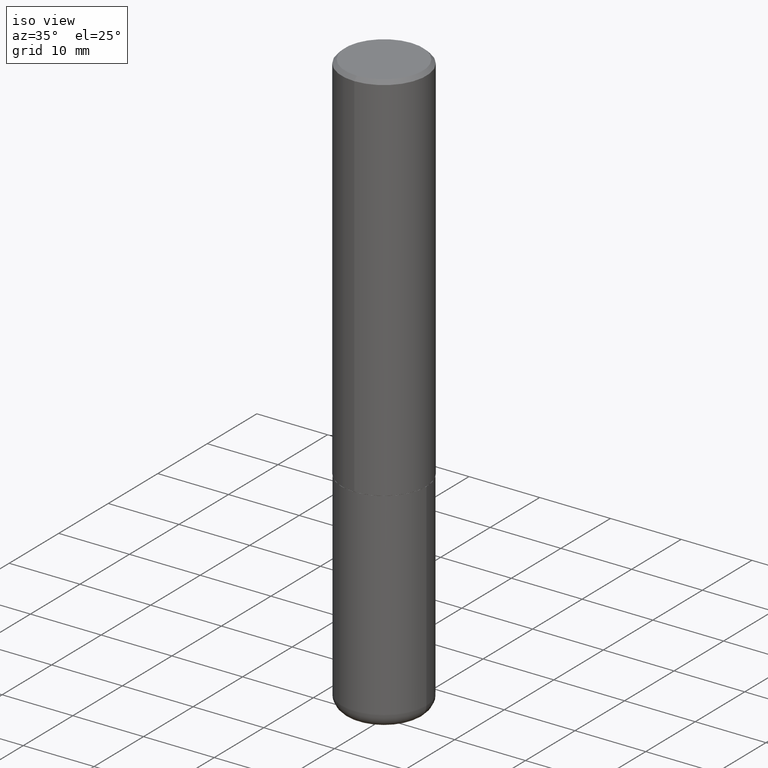
[diagram: clean part render]
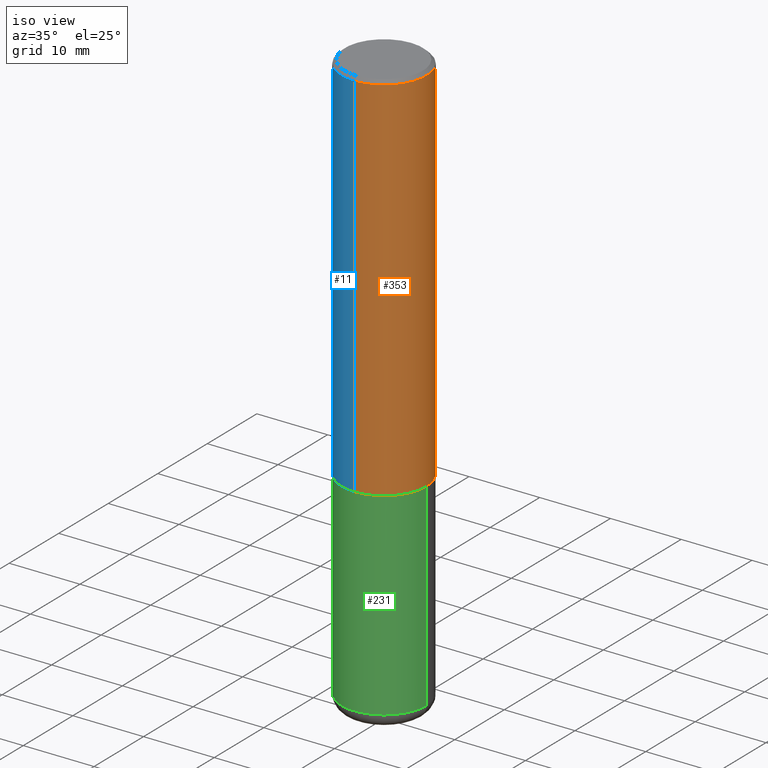
[diagram: same view with three faces highlighted in distinct colors, each labeled with its STEP entity id]
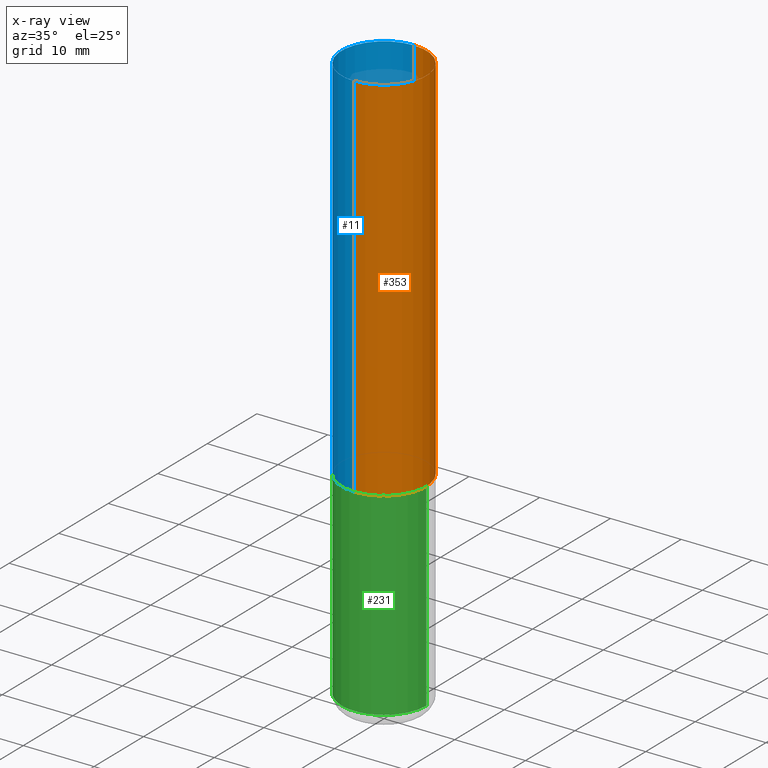
[diagram: x-ray of the same camera — body ghosted, the three highlighted faces saturated]
A machine part, iso view with three faces highlighted in distinct colors.
The next image is the same camera in x-ray (body ghosted, the three faces saturated) — at least one of them is partly hidden behind the body in this view.
Their STEP definitions:

[orange] entity #353 — the highlighted cylindrical surface (partial cylindrical patch) has radius 5.9995 mm, axis along (-0, 0, 1).
#16 = AXIS2_PLACEMENT_3D ( 'NONE', #174, #20, #178 ) ;
#18 = CARTESIAN_POINT ( 'NONE',  ( 1.678301941865383018E-15, 0.2361999999999929711, -2.085600000000000787 ) ) ;
#19 = CARTESIAN_POINT ( 'NONE',  ( 0.000000000000000000, 0.000000000000000000, 0.000000000000000000 ) ) ;
#20 = DIRECTION ( 'NONE',  ( -2.445860723718028373E-29, 3.490920090629483706E-15, 1.000000000000000000 ) ) ;
#25 = CYLINDRICAL_SURFACE ( 'NONE', #170, 0.2362000000000000766 ) ;
#44 = VERTEX_POINT ( 'NONE', #146 ) ;
#46 = CARTESIAN_POINT ( 'NONE',  ( -1.649375784469446630E-15, -0.2362000000000075151, -2.085599999999999010 ) ) ;
#47 = DIRECTION ( 'NONE',  ( -2.445860723718028373E-29, 3.490920090629483706E-15, 1.000000000000000000 ) ) ;
#56 = FACE_OUTER_BOUND ( 'NONE', #347, .T. ) ;
#72 = EDGE_CURVE ( 'NONE', #100, #104, #323, .T. ) ;
#76 = LINE ( 'NONE', #211, #288 ) ;
#77 = LINE ( 'NONE', #185, #144 ) ;
#78 = EDGE_CURVE ( 'NONE', #104, #44, #76, .T. ) ;
#100 = VERTEX_POINT ( 'NONE', #46 ) ;
#104 = VERTEX_POINT ( 'NONE', #18 ) ;
#106 = ORIENTED_EDGE ( 'NONE', *, *, #78, .T. ) ;
#144 = VECTOR ( 'NONE', #180, 39.37007874015748143 ) ;
#146 = CARTESIAN_POINT ( 'NONE',  ( 1.649375784469495934E-15, 0.2361999999999998545, -0.02000000000000087472 ) ) ;
#157 = CARTESIAN_POINT ( 'NONE',  ( -1.620449627073634487E-15, -0.2361999999999999933, -0.01999999999999922673 ) ) ;
#167 = VERTEX_POINT ( 'NONE', #157 ) ;
#170 = AXIS2_PLACEMENT_3D ( 'NONE', #19, #378, #213 ) ;
#174 = CARTESIAN_POINT ( 'NONE',  ( 5.101087125386319798E-29, -7.280662941016851690E-15, -2.085599999999999898 ) ) ;
#175 = DIRECTION ( 'NONE',  ( -6.982962677686265922E-15, -1.000000000000000000, 3.487819265831412533E-15 ) ) ;
#178 = DIRECTION ( 'NONE',  ( -6.982962677686265922E-15, -1.000000000000000000, 3.469747663417773452E-15 ) ) ;
#180 = DIRECTION ( 'NONE',  ( -2.445860723718028093E-29, 3.490920090629484100E-15, 1.000000000000000000 ) ) ;
#185 = CARTESIAN_POINT ( 'NONE',  ( -1.649375784469496525E-15, -0.2362000000000000766, 8.245553254066843076E-16 ) ) ;
#206 = ORIENTED_EDGE ( 'NONE', *, *, #413, .F. ) ;
#211 = CARTESIAN_POINT ( 'NONE',  ( 1.678301941865356789E-15, 0.2362000000000000766, -8.245553254066843076E-16 ) ) ;
#213 = DIRECTION ( 'NONE',  ( -6.982962677686265922E-15, -1.000000000000000000, 3.490920090629483706E-15 ) ) ;
#234 = ORIENTED_EDGE ( 'NONE', *, *, #318, .F. ) ;
#238 = CIRCLE ( 'NONE', #297, 0.2361999999999999378 ) ;
#240 = DIRECTION ( 'NONE',  ( -2.445860723718028093E-29, 3.490920090629484100E-15, 1.000000000000000000 ) ) ;
#288 = VECTOR ( 'NONE', #240, 39.37007874015748143 ) ;
#297 = AXIS2_PLACEMENT_3D ( 'NONE', #337, #47, #175 ) ;
#301 = ORIENTED_EDGE ( 'NONE', *, *, #72, .T. ) ;
#318 = EDGE_CURVE ( 'NONE', #100, #167, #77, .T. ) ;
#323 = CIRCLE ( 'NONE', #16, 0.2362000000000002431 ) ;
#337 = CARTESIAN_POINT ( 'NONE',  ( 4.891721447436068727E-31, -6.981840181258985900E-17, -0.02000000000000005246 ) ) ;
#347 = EDGE_LOOP ( 'NONE', ( #301, #106, #206, #234 ) ) ;
#353 = ADVANCED_FACE ( 'NONE', ( #56 ), #25, .T. ) ;
#378 = DIRECTION ( 'NONE',  ( -2.445860723718028373E-29, 3.490920090629483706E-15, 1.000000000000000000 ) ) ;
#413 = EDGE_CURVE ( 'NONE', #167, #44, #238, .T. ) ;

[blue] entity #11 — the highlighted cylindrical surface (partial cylindrical patch) has radius 5.9995 mm, axis along (-0, 0, 1).
#11 = ADVANCED_FACE ( 'NONE', ( #333 ), #129, .T. ) ;
#18 = CARTESIAN_POINT ( 'NONE',  ( 1.678301941865383018E-15, 0.2361999999999929711, -2.085600000000000787 ) ) ;
#44 = VERTEX_POINT ( 'NONE', #146 ) ;
#45 = CARTESIAN_POINT ( 'NONE',  ( 5.101087125386319798E-29, -7.280662941016851690E-15, -2.085599999999999898 ) ) ;
#46 = CARTESIAN_POINT ( 'NONE',  ( -1.649375784469446630E-15, -0.2362000000000075151, -2.085599999999999010 ) ) ;
#51 = EDGE_CURVE ( 'NONE', #104, #100, #290, .T. ) ;
#55 = AXIS2_PLACEMENT_3D ( 'NONE', #96, #200, #166 ) ;
#76 = LINE ( 'NONE', #211, #288 ) ;
#77 = LINE ( 'NONE', #185, #144 ) ;
#78 = EDGE_CURVE ( 'NONE', #104, #44, #76, .T. ) ;
#86 = ORIENTED_EDGE ( 'NONE', *, *, #260, .F. ) ;
#96 = CARTESIAN_POINT ( 'NONE',  ( 0.000000000000000000, 0.000000000000000000, 0.000000000000000000 ) ) ;
#100 = VERTEX_POINT ( 'NONE', #46 ) ;
#104 = VERTEX_POINT ( 'NONE', #18 ) ;
#129 = CYLINDRICAL_SURFACE ( 'NONE', #55, 0.2362000000000000766 ) ;
#144 = VECTOR ( 'NONE', #180, 39.37007874015748143 ) ;
#146 = CARTESIAN_POINT ( 'NONE',  ( 1.649375784469495934E-15, 0.2361999999999998545, -0.02000000000000087472 ) ) ;
#151 = DIRECTION ( 'NONE',  ( -6.982962677686265922E-15, -1.000000000000000000, 3.487819265831412533E-15 ) ) ;
#154 = DIRECTION ( 'NONE',  ( -6.982962677686265922E-15, -1.000000000000000000, 3.469747663417773452E-15 ) ) ;
#157 = CARTESIAN_POINT ( 'NONE',  ( -1.620449627073634487E-15, -0.2361999999999999933, -0.01999999999999922673 ) ) ;
#166 = DIRECTION ( 'NONE',  ( -6.982962677686265922E-15, -1.000000000000000000, 3.490920090629483706E-15 ) ) ;
#167 = VERTEX_POINT ( 'NONE', #157 ) ;
#180 = DIRECTION ( 'NONE',  ( -2.445860723718028093E-29, 3.490920090629484100E-15, 1.000000000000000000 ) ) ;
#185 = CARTESIAN_POINT ( 'NONE',  ( -1.649375784469496525E-15, -0.2362000000000000766, 8.245553254066843076E-16 ) ) ;
#200 = DIRECTION ( 'NONE',  ( -2.445860723718028373E-29, 3.490920090629483706E-15, 1.000000000000000000 ) ) ;
#211 = CARTESIAN_POINT ( 'NONE',  ( 1.678301941865356789E-15, 0.2362000000000000766, -8.245553254066843076E-16 ) ) ;
#240 = DIRECTION ( 'NONE',  ( -2.445860723718028093E-29, 3.490920090629484100E-15, 1.000000000000000000 ) ) ;
#260 = EDGE_CURVE ( 'NONE', #44, #167, #356, .T. ) ;
#266 = AXIS2_PLACEMENT_3D ( 'NONE', #303, #352, #151 ) ;
#269 = ORIENTED_EDGE ( 'NONE', *, *, #318, .T. ) ;
#288 = VECTOR ( 'NONE', #240, 39.37007874015748143 ) ;
#290 = CIRCLE ( 'NONE', #306, 0.2362000000000002431 ) ;
#303 = CARTESIAN_POINT ( 'NONE',  ( 4.891721447436068727E-31, -6.981840181258985900E-17, -0.02000000000000005246 ) ) ;
#305 = DIRECTION ( 'NONE',  ( -2.445860723718028373E-29, 3.490920090629483706E-15, 1.000000000000000000 ) ) ;
#306 = AXIS2_PLACEMENT_3D ( 'NONE', #45, #305, #154 ) ;
#318 = EDGE_CURVE ( 'NONE', #100, #167, #77, .T. ) ;
#333 = FACE_OUTER_BOUND ( 'NONE', #365, .T. ) ;
#352 = DIRECTION ( 'NONE',  ( -2.445860723718028373E-29, 3.490920090629483706E-15, 1.000000000000000000 ) ) ;
#356 = CIRCLE ( 'NONE', #266, 0.2361999999999999378 ) ;
#360 = ORIENTED_EDGE ( 'NONE', *, *, #78, .F. ) ;
#365 = EDGE_LOOP ( 'NONE', ( #360, #379, #269, #86 ) ) ;
#379 = ORIENTED_EDGE ( 'NONE', *, *, #51, .T. ) ;

[green] entity #231 — the highlighted cylindrical surface (partial cylindrical patch) has radius 5.9995 mm, axis along (-0, 0, 1).
#1 = DIRECTION ( 'NONE',  ( -2.445468806185136597E-29, 3.491481338843145583E-15, 1.000000000000000000 ) ) ;
#14 = ORIENTED_EDGE ( 'NONE', *, *, #325, .F. ) ;
#23 = DIRECTION ( 'NONE',  ( 1.000000000000000000, -6.982962677686265133E-15, 0.000000000000000000 ) ) ;
#28 = VERTEX_POINT ( 'NONE', #93 ) ;
#33 = AXIS2_PLACEMENT_3D ( 'NONE', #294, #295, #314 ) ;
#40 = AXIS2_PLACEMENT_3D ( 'NONE', #48, #1, #90 ) ;
#48 = CARTESIAN_POINT ( 'NONE',  ( 0.000000000000000000, 0.000000000000000000, 0.000000000000000000 ) ) ;
#53 = VERTEX_POINT ( 'NONE', #57 ) ;
#57 = CARTESIAN_POINT ( 'NONE',  ( 0.2361999999999999655, -1.278370977404028805E-14, -3.189000000000000501 ) ) ;
#66 = VECTOR ( 'NONE', #349, 39.37007874015748143 ) ;
#90 = DIRECTION ( 'NONE',  ( 1.000000000000000000, -6.982962677686266711E-15, 4.876176775795936353E-29 ) ) ;
#93 = CARTESIAN_POINT ( 'NONE',  ( 0.2361999999999999933, -8.934700746099602364E-15, -2.086600000000000232 ) ) ;
#115 = ORIENTED_EDGE ( 'NONE', *, *, #275, .T. ) ;
#117 = CARTESIAN_POINT ( 'NONE',  ( -0.2361999999999999933, -7.531527533735093865E-15, -2.086600000000000232 ) ) ;
#132 = CIRCLE ( 'NONE', #183, 0.2361999999999999933 ) ;
#142 = FACE_OUTER_BOUND ( 'NONE', #328, .T. ) ;
#152 = EDGE_CURVE ( 'NONE', #304, #377, #169, .T. ) ;
#161 = VECTOR ( 'NONE', #335, 39.37007874015748143 ) ;
#169 = LINE ( 'NONE', #402, #161 ) ;
#172 = CARTESIAN_POINT ( 'NONE',  ( 5.102715210985906276E-29, -7.285324961630107416E-15, -2.086600000000000232 ) ) ;
#183 = AXIS2_PLACEMENT_3D ( 'NONE', #172, #410, #23 ) ;
#188 = EDGE_CURVE ( 'NONE', #304, #53, #381, .T. ) ;
#227 = ORIENTED_EDGE ( 'NONE', *, *, #188, .T. ) ;
#229 = ORIENTED_EDGE ( 'NONE', *, *, #152, .F. ) ;
#231 = ADVANCED_FACE ( 'NONE', ( #142 ), #375, .T. ) ;
#270 = LINE ( 'NONE', #340, #66 ) ;
#275 = EDGE_CURVE ( 'NONE', #53, #28, #270, .T. ) ;
#294 = CARTESIAN_POINT ( 'NONE',  ( 7.798600022924401307E-29, -1.113433398957079310E-14, -3.189000000000000501 ) ) ;
#295 = DIRECTION ( 'NONE',  ( -2.445468806185136597E-29, 3.491481338843145583E-15, 1.000000000000000000 ) ) ;
#304 = VERTEX_POINT ( 'NONE', #380 ) ;
#314 = DIRECTION ( 'NONE',  ( 1.000000000000000000, -6.982962677686265133E-15, 0.000000000000000000 ) ) ;
#325 = EDGE_CURVE ( 'NONE', #377, #28, #132, .T. ) ;
#328 = EDGE_LOOP ( 'NONE', ( #229, #227, #115, #14 ) ) ;
#335 = DIRECTION ( 'NONE',  ( -2.445468806185136877E-29, 3.491481338843145188E-15, 1.000000000000000000 ) ) ;
#340 = CARTESIAN_POINT ( 'NONE',  ( 0.2361999999999999933, -1.649375784469496131E-15, 1.151752954443000088E-29 ) ) ;
#349 = DIRECTION ( 'NONE',  ( -2.445468806185136877E-29, 3.491481338843145188E-15, 1.000000000000000000 ) ) ;
#375 = CYLINDRICAL_SURFACE ( 'NONE', #40, 0.2361999999999999933 ) ;
#377 = VERTEX_POINT ( 'NONE', #117 ) ;
#380 = CARTESIAN_POINT ( 'NONE',  ( -0.2361999999999999655, -9.456032047705438285E-15, -3.189000000000000501 ) ) ;
#381 = CIRCLE ( 'NONE', #33, 0.2361999999999999933 ) ;
#402 = CARTESIAN_POINT ( 'NONE',  ( -0.2361999999999999933, 1.678301941865356591E-15, -1.161852468318208757E-29 ) ) ;
#410 = DIRECTION ( 'NONE',  ( -2.445468806185136597E-29, 3.491481338843145583E-15, 1.000000000000000000 ) ) ;